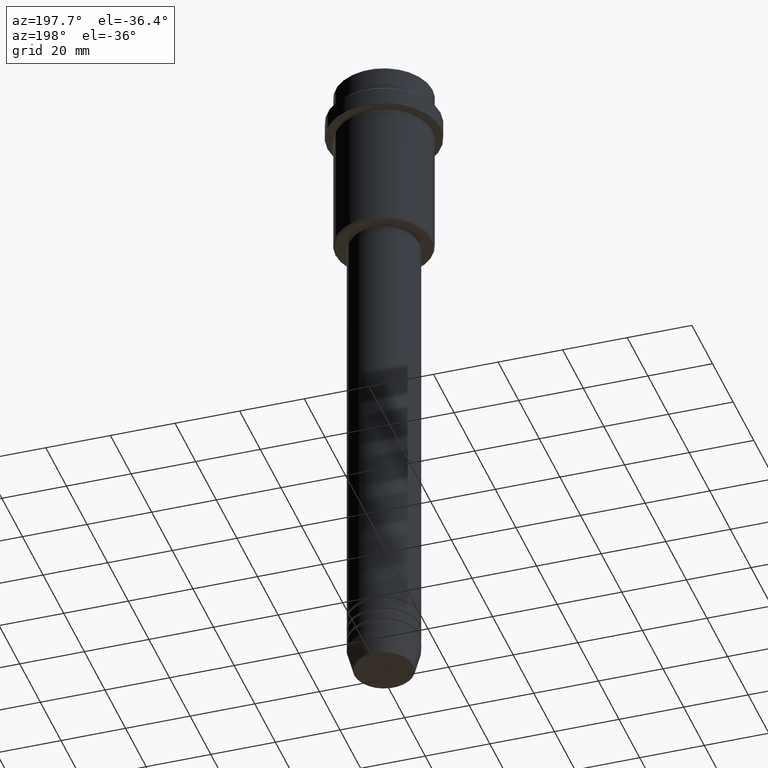
[diagram: clean part render]
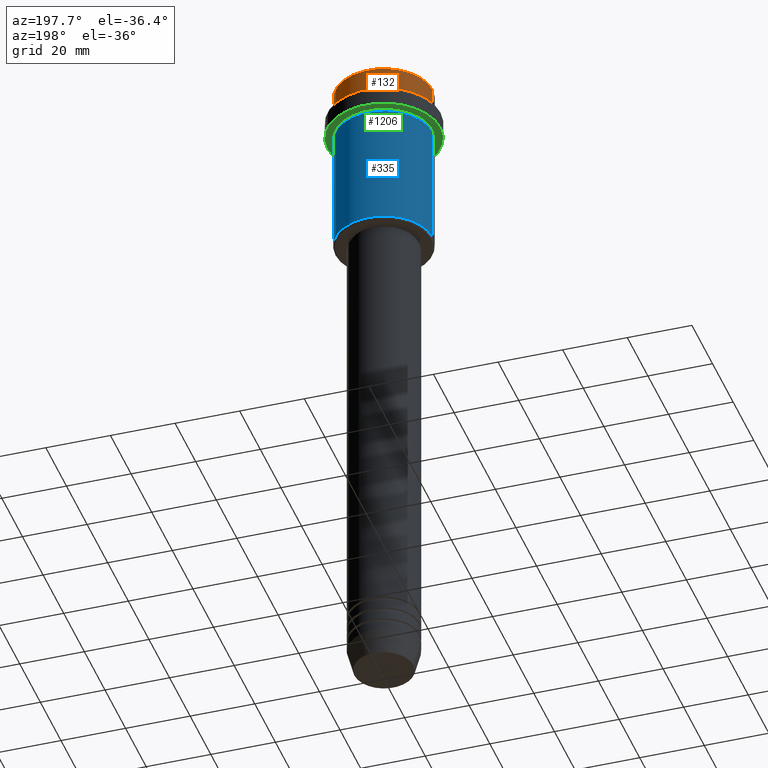
[diagram: same view with three faces highlighted in distinct colors, each labeled with its STEP entity id]
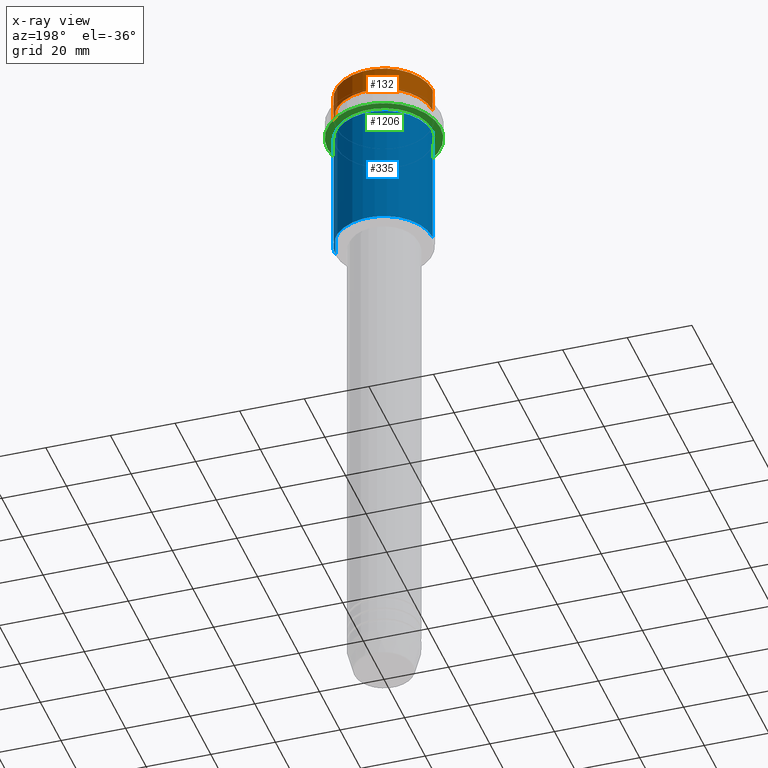
[diagram: x-ray of the same camera — body ghosted, the three highlighted faces saturated]
A machine part, auxiliary view with three faces highlighted in distinct colors.
The next image is the same camera in x-ray (body ghosted, the three faces saturated) — at least one of them is partly hidden behind the body in this view.
Their STEP definitions:

[orange] entity #132 — the highlighted cylindrical surface (partial cylindrical patch) has radius 15 mm, axis along (-0, -0, 1).
#35 = LINE ( 'NONE', #1021, #629 ) ;
#93 = AXIS2_PLACEMENT_3D ( 'NONE', #1025, #285, #279 ) ;
#132 = ADVANCED_FACE ( 'NONE', ( #1230 ), #506, .T. ) ;
#149 = EDGE_CURVE ( 'NONE', #1264, #1242, #714, .T. ) ;
#178 = CARTESIAN_POINT ( 'NONE',  ( 15.00000000000000000, 0.000000000000000000, -0.5000000000000108802 ) ) ;
#186 = CIRCLE ( 'NONE', #982, 15.00000000000000000 ) ;
#219 = ORIENTED_EDGE ( 'NONE', *, *, #1139, .T. ) ;
#223 = CARTESIAN_POINT ( 'NONE',  ( 0.000000000000000000, 0.000000000000000000, -7.999999999999998224 ) ) ;
#256 = DIRECTION ( 'NONE',  ( 1.000000000000000000, 0.000000000000000000, 0.000000000000000000 ) ) ;
#262 = AXIS2_PLACEMENT_3D ( 'NONE', #815, #485, #256 ) ;
#264 = DIRECTION ( 'NONE',  ( -0.000000000000000000, -0.000000000000000000, 1.000000000000000000 ) ) ;
#279 = DIRECTION ( 'NONE',  ( 1.000000000000000000, 0.000000000000000000, 0.000000000000000000 ) ) ;
#285 = DIRECTION ( 'NONE',  ( -0.000000000000000000, -0.000000000000000000, 1.000000000000000000 ) ) ;
#320 = ORIENTED_EDGE ( 'NONE', *, *, #1398, .T. ) ;
#339 = DIRECTION ( 'NONE',  ( -0.000000000000000000, -0.000000000000000000, 1.000000000000000000 ) ) ;
#396 = ORIENTED_EDGE ( 'NONE', *, *, #1111, .T. ) ;
#397 = DIRECTION ( 'NONE',  ( -0.000000000000000000, -0.000000000000000000, 1.000000000000000000 ) ) ;
#418 = CARTESIAN_POINT ( 'NONE',  ( 15.00000000000000000, 0.000000000000000000, -7.999999999999998224 ) ) ;
#485 = DIRECTION ( 'NONE',  ( 0.000000000000000000, 0.000000000000000000, -1.000000000000000000 ) ) ;
#506 = CYLINDRICAL_SURFACE ( 'NONE', #93, 15.00000000000000000 ) ;
#589 = VECTOR ( 'NONE', #264, 1000.000000000000000 ) ;
#618 = EDGE_LOOP ( 'NONE', ( #320, #396, #219, #1056 ) ) ;
#625 = VERTEX_POINT ( 'NONE', #700 ) ;
#629 = VECTOR ( 'NONE', #397, 1000.000000000000000 ) ;
#668 = DIRECTION ( 'NONE',  ( 1.000000000000000000, 0.000000000000000000, 0.000000000000000000 ) ) ;
#700 = CARTESIAN_POINT ( 'NONE',  ( -15.00000000000000000, 1.836970198721029589E-15, -7.999999999999998224 ) ) ;
#714 = LINE ( 'NONE', #1378, #589 ) ;
#815 = CARTESIAN_POINT ( 'NONE',  ( 0.000000000000000000, 0.000000000000000000, -0.5000000000000108802 ) ) ;
#895 = CIRCLE ( 'NONE', #262, 15.00000000000000000 ) ;
#982 = AXIS2_PLACEMENT_3D ( 'NONE', #223, #339, #668 ) ;
#1021 = CARTESIAN_POINT ( 'NONE',  ( -15.00000000000000000, 1.836970198721029589E-15, 0.000000000000000000 ) ) ;
#1025 = CARTESIAN_POINT ( 'NONE',  ( 0.000000000000000000, 0.000000000000000000, 0.000000000000000000 ) ) ;
#1056 = ORIENTED_EDGE ( 'NONE', *, *, #149, .F. ) ;
#1111 = EDGE_CURVE ( 'NONE', #625, #1118, #35, .T. ) ;
#1118 = VERTEX_POINT ( 'NONE', #1131 ) ;
#1131 = CARTESIAN_POINT ( 'NONE',  ( -15.00000000000000000, 1.836970198721029589E-15, -0.5000000000000108802 ) ) ;
#1139 = EDGE_CURVE ( 'NONE', #1118, #1242, #895, .T. ) ;
#1230 = FACE_OUTER_BOUND ( 'NONE', #618, .T. ) ;
#1242 = VERTEX_POINT ( 'NONE', #178 ) ;
#1264 = VERTEX_POINT ( 'NONE', #418 ) ;
#1378 = CARTESIAN_POINT ( 'NONE',  ( 15.00000000000000000, 0.000000000000000000, 0.000000000000000000 ) ) ;
#1398 = EDGE_CURVE ( 'NONE', #1264, #625, #186, .T. ) ;

[blue] entity #335 — the highlighted cylindrical surface (partial cylindrical patch) has radius 15 mm, axis along (-0, -0, 1).
#4 = CARTESIAN_POINT ( 'NONE',  ( 15.00000000000000178, 0.000000000000000000, -16.00000000000000000 ) ) ;
#21 = AXIS2_PLACEMENT_3D ( 'NONE', #552, #448, #875 ) ;
#194 = ORIENTED_EDGE ( 'NONE', *, *, #818, .T. ) ;
#231 = VERTEX_POINT ( 'NONE', #611 ) ;
#266 = CIRCLE ( 'NONE', #404, 15.00000000000000178 ) ;
#307 = ORIENTED_EDGE ( 'NONE', *, *, #566, .F. ) ;
#330 = CIRCLE ( 'NONE', #21, 15.00000000000000000 ) ;
#335 = ADVANCED_FACE ( 'NONE', ( #1191 ), #524, .T. ) ;
#357 = CARTESIAN_POINT ( 'NONE',  ( 15.00000000000000000, 0.000000000000000000, 0.000000000000000000 ) ) ;
#404 = AXIS2_PLACEMENT_3D ( 'NONE', #773, #587, #782 ) ;
#415 = DIRECTION ( 'NONE',  ( 1.000000000000000000, 0.000000000000000000, 0.000000000000000000 ) ) ;
#448 = DIRECTION ( 'NONE',  ( -0.000000000000000000, -0.000000000000000000, 1.000000000000000000 ) ) ;
#466 = EDGE_LOOP ( 'NONE', ( #955, #194, #307, #526 ) ) ;
#470 = LINE ( 'NONE', #357, #1306 ) ;
#494 = VERTEX_POINT ( 'NONE', #989 ) ;
#524 = CYLINDRICAL_SURFACE ( 'NONE', #1281, 15.00000000000000000 ) ;
#526 = ORIENTED_EDGE ( 'NONE', *, *, #529, .F. ) ;
#529 = EDGE_CURVE ( 'NONE', #851, #923, #470, .T. ) ;
#540 = CARTESIAN_POINT ( 'NONE',  ( 15.00000000000000000, 0.000000000000000000, -54.50000000000001421 ) ) ;
#552 = CARTESIAN_POINT ( 'NONE',  ( 0.000000000000000000, 0.000000000000000000, -54.50000000000001421 ) ) ;
#566 = EDGE_CURVE ( 'NONE', #923, #231, #266, .T. ) ;
#587 = DIRECTION ( 'NONE',  ( -0.000000000000000000, -0.000000000000000000, 1.000000000000000000 ) ) ;
#611 = CARTESIAN_POINT ( 'NONE',  ( -15.00000000000000355, 1.836970198721029983E-15, -16.00000000000000000 ) ) ;
#647 = DIRECTION ( 'NONE',  ( -0.000000000000000000, -0.000000000000000000, 1.000000000000000000 ) ) ;
#773 = CARTESIAN_POINT ( 'NONE',  ( 0.000000000000000000, 0.000000000000000000, -16.00000000000000000 ) ) ;
#782 = DIRECTION ( 'NONE',  ( 1.000000000000000000, 0.000000000000000000, 0.000000000000000000 ) ) ;
#818 = EDGE_CURVE ( 'NONE', #494, #231, #1059, .T. ) ;
#837 = CARTESIAN_POINT ( 'NONE',  ( -15.00000000000000000, 1.836970198721029589E-15, 0.000000000000000000 ) ) ;
#851 = VERTEX_POINT ( 'NONE', #540 ) ;
#875 = DIRECTION ( 'NONE',  ( -1.000000000000000000, 0.000000000000000000, 0.000000000000000000 ) ) ;
#923 = VERTEX_POINT ( 'NONE', #4 ) ;
#955 = ORIENTED_EDGE ( 'NONE', *, *, #1031, .T. ) ;
#989 = CARTESIAN_POINT ( 'NONE',  ( -15.00000000000000000, 1.836970198721029589E-15, -54.50000000000001421 ) ) ;
#1031 = EDGE_CURVE ( 'NONE', #851, #494, #330, .T. ) ;
#1059 = LINE ( 'NONE', #837, #1254 ) ;
#1177 = DIRECTION ( 'NONE',  ( -0.000000000000000000, -0.000000000000000000, 1.000000000000000000 ) ) ;
#1191 = FACE_OUTER_BOUND ( 'NONE', #466, .T. ) ;
#1198 = DIRECTION ( 'NONE',  ( -0.000000000000000000, -0.000000000000000000, 1.000000000000000000 ) ) ;
#1254 = VECTOR ( 'NONE', #647, 1000.000000000000000 ) ;
#1281 = AXIS2_PLACEMENT_3D ( 'NONE', #1388, #1177, #415 ) ;
#1306 = VECTOR ( 'NONE', #1198, 1000.000000000000000 ) ;
#1388 = CARTESIAN_POINT ( 'NONE',  ( 0.000000000000000000, 0.000000000000000000, 0.000000000000000000 ) ) ;

[green] entity #1206 — the highlighted planar face has unit normal (0, 0, -1).
#49 = CARTESIAN_POINT ( 'NONE',  ( 0.000000000000000000, 0.000000000000000000, -15.00000000000000178 ) ) ;
#117 = CIRCLE ( 'NONE', #582, 14.99999999999999645 ) ;
#121 = ORIENTED_EDGE ( 'NONE', *, *, #792, .F. ) ;
#173 = CARTESIAN_POINT ( 'NONE',  ( 17.50000000000000000, 0.000000000000000000, -15.00000000000000178 ) ) ;
#174 = DIRECTION ( 'NONE',  ( -0.000000000000000000, -0.000000000000000000, 1.000000000000000000 ) ) ;
#315 = CARTESIAN_POINT ( 'NONE',  ( 0.000000000000000000, 0.000000000000000000, -15.00000000000000000 ) ) ;
#321 = CARTESIAN_POINT ( 'NONE',  ( 0.000000000000000000, 0.000000000000000000, -15.00000000000000178 ) ) ;
#332 = DIRECTION ( 'NONE',  ( -1.000000000000000000, 0.000000000000000000, 0.000000000000000000 ) ) ;
#355 = CIRCLE ( 'NONE', #1068, 17.50000000000000000 ) ;
#361 = AXIS2_PLACEMENT_3D ( 'NONE', #49, #174, #904 ) ;
#405 = ORIENTED_EDGE ( 'NONE', *, *, #890, .T. ) ;
#413 = EDGE_CURVE ( 'NONE', #642, #1332, #473, .T. ) ;
#434 = DIRECTION ( 'NONE',  ( -1.000000000000000000, 0.000000000000000000, 0.000000000000000000 ) ) ;
#437 = CARTESIAN_POINT ( 'NONE',  ( 14.99999999999999645, 1.836970198721029194E-15, -15.00000000000000000 ) ) ;
#473 = CIRCLE ( 'NONE', #1011, 14.99999999999999645 ) ;
#487 = CARTESIAN_POINT ( 'NONE',  ( -17.50000000000000000, 2.143131898507868248E-15, -15.00000000000000178 ) ) ;
#582 = AXIS2_PLACEMENT_3D ( 'NONE', #950, #1100, #332 ) ;
#624 = ORIENTED_EDGE ( 'NONE', *, *, #646, .F. ) ;
#640 = DIRECTION ( 'NONE',  ( -1.000000000000000000, 0.000000000000000000, -0.000000000000000000 ) ) ;
#642 = VERTEX_POINT ( 'NONE', #1252 ) ;
#646 = EDGE_CURVE ( 'NONE', #1287, #690, #918, .T. ) ;
#690 = VERTEX_POINT ( 'NONE', #487 ) ;
#691 = AXIS2_PLACEMENT_3D ( 'NONE', #727, #1380, #640 ) ;
#727 = CARTESIAN_POINT ( 'NONE',  ( 0.000000000000000000, 17.50000000000000000, -15.00000000000000000 ) ) ;
#751 = DIRECTION ( 'NONE',  ( 1.000000000000000000, 0.000000000000000000, 0.000000000000000000 ) ) ;
#792 = EDGE_CURVE ( 'NONE', #690, #1287, #355, .T. ) ;
#841 = PLANE ( 'NONE',  #691 ) ;
#886 = ORIENTED_EDGE ( 'NONE', *, *, #413, .T. ) ;
#890 = EDGE_CURVE ( 'NONE', #1332, #642, #117, .T. ) ;
#904 = DIRECTION ( 'NONE',  ( 1.000000000000000000, 0.000000000000000000, 0.000000000000000000 ) ) ;
#918 = CIRCLE ( 'NONE', #361, 17.50000000000000000 ) ;
#943 = FACE_BOUND ( 'NONE', #1385, .T. ) ;
#948 = FACE_OUTER_BOUND ( 'NONE', #1170, .T. ) ;
#950 = CARTESIAN_POINT ( 'NONE',  ( 0.000000000000000000, 0.000000000000000000, -15.00000000000000000 ) ) ;
#1011 = AXIS2_PLACEMENT_3D ( 'NONE', #315, #1402, #434 ) ;
#1068 = AXIS2_PLACEMENT_3D ( 'NONE', #321, #1391, #751 ) ;
#1100 = DIRECTION ( 'NONE',  ( -0.000000000000000000, -0.000000000000000000, 1.000000000000000000 ) ) ;
#1170 = EDGE_LOOP ( 'NONE', ( #624, #121 ) ) ;
#1206 = ADVANCED_FACE ( 'NONE', ( #943, #948 ), #841, .T. ) ;
#1252 = CARTESIAN_POINT ( 'NONE',  ( -14.99999999999999645, 0.000000000000000000, -15.00000000000000000 ) ) ;
#1287 = VERTEX_POINT ( 'NONE', #173 ) ;
#1332 = VERTEX_POINT ( 'NONE', #437 ) ;
#1380 = DIRECTION ( 'NONE',  ( 0.000000000000000000, 0.000000000000000000, -1.000000000000000000 ) ) ;
#1385 = EDGE_LOOP ( 'NONE', ( #886, #405 ) ) ;
#1391 = DIRECTION ( 'NONE',  ( -0.000000000000000000, -0.000000000000000000, 1.000000000000000000 ) ) ;
#1402 = DIRECTION ( 'NONE',  ( -0.000000000000000000, -0.000000000000000000, 1.000000000000000000 ) ) ;